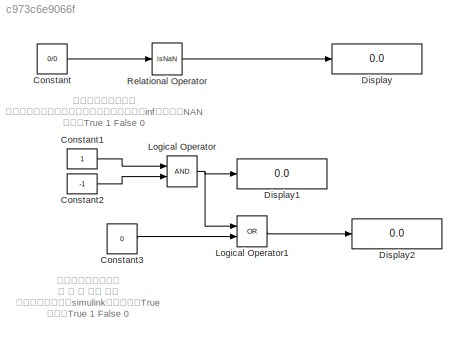
MODEL slx_c973c6e9066f
KIND model
CONFIG AbsTol = auto
CONFIG EnableMultiTasking = off
CONFIG FixedStep = auto
CONFIG MaxStep = auto
CONFIG MinStep = auto
CONFIG RelTol = 1e-3
CONFIG SampleTimeConstraint = Unconstrained
CONFIG Solver = VariableStepAuto
CONFIG SolverName = VariableStepAuto
CONFIG StartTime = 0.0
CONFIG StopTime = 10.0
BLOCK [Constant] Constant
  Value = 0/0
BLOCK [Constant] Constant1
BLOCK [Constant] Constant2
  Value = -1
BLOCK [Constant] Constant3
  Value = 0
BLOCK [Display] Display
  Decimation = 1
  Ports = [1]
BLOCK [Display] Display1
  Decimation = 1
  Ports = [1]
BLOCK [Display] Display2
  Decimation = 1
  Ports = [1]
BLOCK [Logic] Logical Operator
  AllPortsSameDT = off
  OutDataTypeStr = boolean
  Ports = [2, 1]
BLOCK [Logic] Logical Operator1
  AllPortsSameDT = off
  Operator = OR
  OutDataTypeStr = boolean
  Ports = [2, 1]
BLOCK [RelationalOperator] Relational Operator
  InputSameDT = off
  Operator = isNaN
  OutDataTypeStr = boolean
  Ports = [1, 1]
  RndMeth = Simplest
ANNOTATION (root): 关系运算的功能为： 判断两数的大小关系，或者判断是否为无穷大inf或未定式NAN 输出：True 1 False 0
ANNOTATION (root): 逻辑运算的功能为： 与 或 非 异或 同或 对任意数值来说，simulink都将看成真True 输出：True 1 False 0
LINE Constant1:1 -> Logical Operator:1
LINE Constant2:1 -> Logical Operator:2
LINE Constant3:1 -> Logical Operator1:2
LINE Constant:1 -> Relational Operator:1
LINE Logical Operator1:1 -> Display2:1
NET Logical Operator:1 -> Display1:1, Logical Operator1:1
LINE Relational Operator:1 -> Display:1
note: NET lines group one-source signal fan-out (src -> all destinations, sorted); 1:1 wires keep LINE
